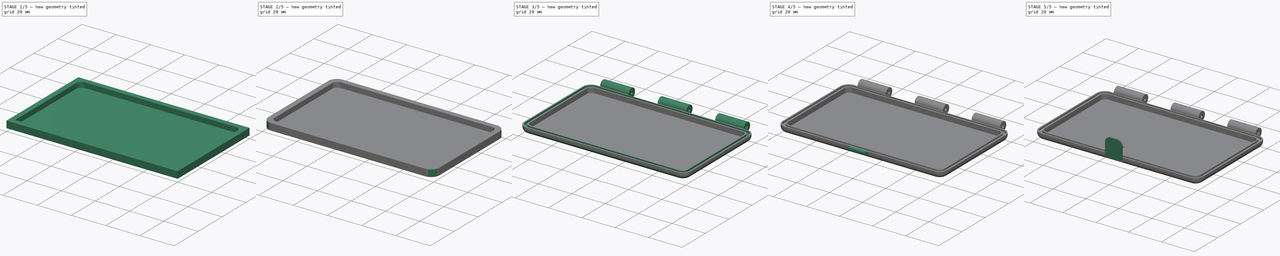
[diagram: build sequence overview — one tinted view per stage of 5, left to right]
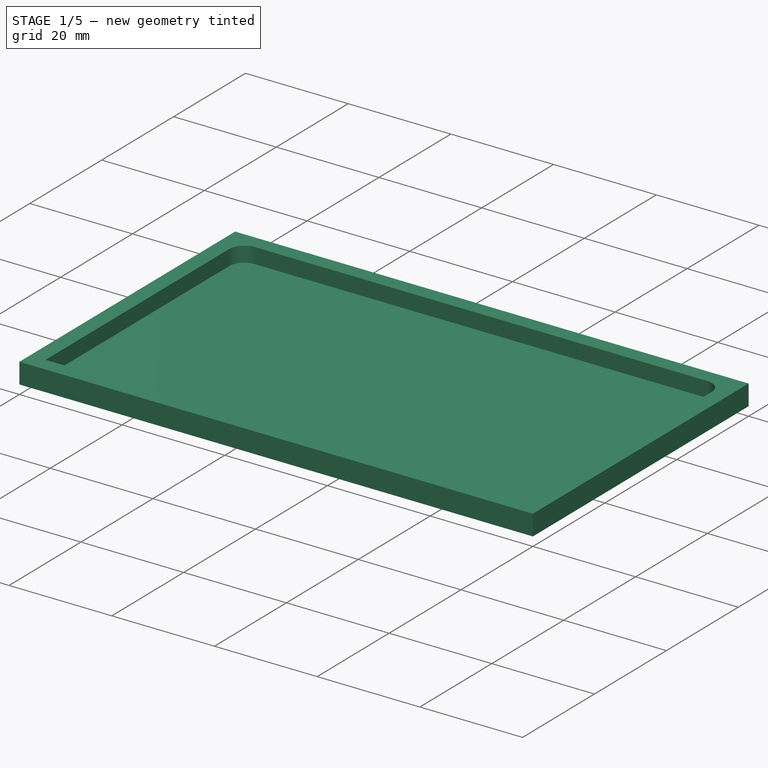
[diagram: stage 1 of 5 — iso view after this stage's code; geometry added in this stage tinted green]
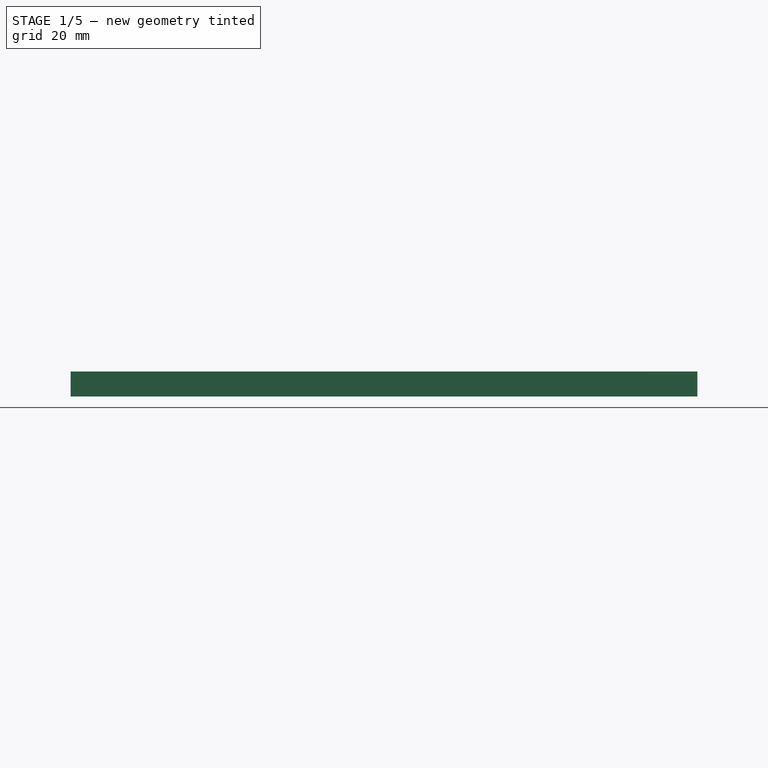
[diagram: stage 1 of 5 — front view after this stage's code; geometry added in this stage tinted green]
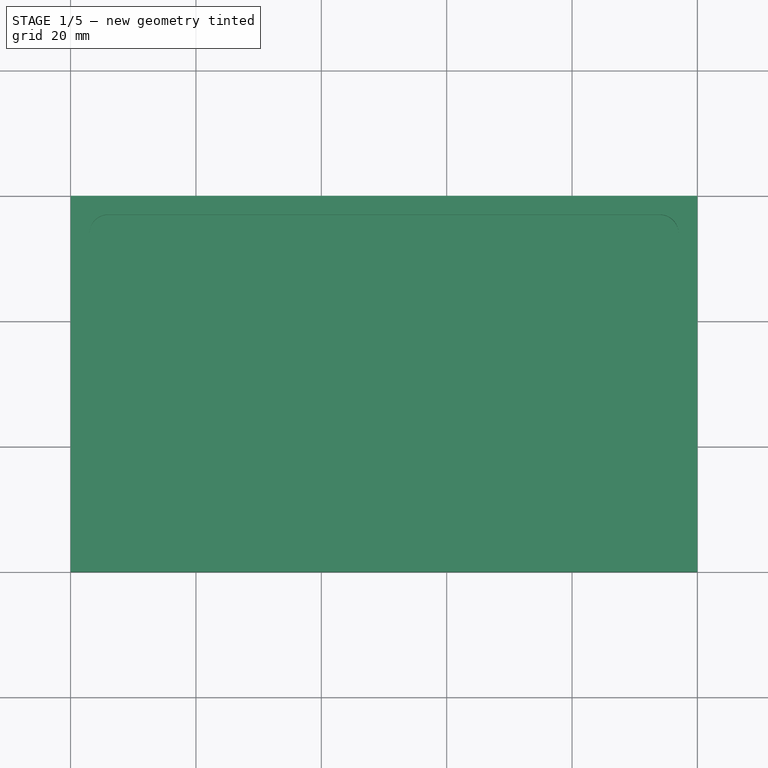
[diagram: stage 1 of 5 — top view after this stage's code; geometry added in this stage tinted green]
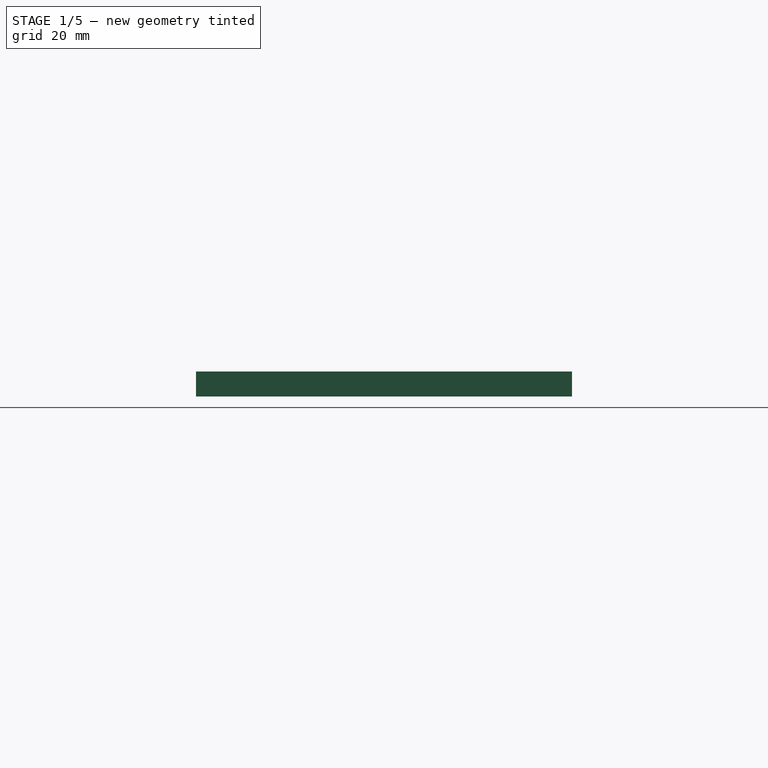
[diagram: stage 1 of 5 — right view after this stage's code; geometry added in this stage tinted green]
FCSTD DOCUMENT  (FreeCAD 0.19R24291 (Git))
Label: funnybox-closing-v2
License: All rights reserved
LicenseURL: http://en.wikipedia.org/wiki/All_rights_reserved
objects: PartDesign::Fillet×12, Sketcher::SketchObject×8, PartDesign::Pad×4, PartDesign::Pocket×3, PartDesign::LinearPattern×3, PartDesign::AdditiveCylinder×1, PartDesign::SubtractiveCylinder×1, PartDesign::AdditiveBox×1, PartDesign::Chamfer×1, PartDesign::Body×1
note: 58 computed .brp shape members not serialized (recipe doc carries the construction recipe); baked Part::Feature solids carry a one-line shape summary decoded from their .brp

FEATURE [Sketcher::SketchObject] Sketch
  FullyConstrained = true
  MapMode = 5
  Support = -> [XY_Plane]
  sketch-geometry (4):
    g0: LineSegment StartX=0 StartY=0 StartZ=0 EndX=100 EndY=0 EndZ=0
    g1: LineSegment StartX=100 StartY=0 StartZ=0 EndX=100 EndY=60 EndZ=0
    g2: LineSegment StartX=100 StartY=60 StartZ=0 EndX=0 EndY=60 EndZ=0
    g3: LineSegment StartX=0 StartY=60 StartZ=0 EndX=0 EndY=0 EndZ=0
  constraints (12):
    c: Coincident(g0,g1)
    c: Coincident(g1,g2)
    c: Coincident(g2,g3)
    c: Coincident(g3,g0)
    c: Horizontal(g0)
    c: Horizontal(g2)
    c: Vertical(g1)
    c: Vertical(g3)
    c: DistanceX(g0) = 0
    c: DistanceY(g0) = 0
    c: DistanceX(g2,g2) = 100
    c: DistanceY(g3,g3) = 60
FEATURE [PartDesign::Pad] Pad  label="Main"
  Direction = (1,1,1)
  Length = 4
  Length2 = 100
  Profile = -> Sketch
  Type = 0
FEATURE [Sketcher::SketchObject] Sketch001
  FullyConstrained = true
  MapMode = 5
  Placement = pos=(0,0,4) rot=(0,0,1;0rad)
  Support = -> [Pad]
  sketch-geometry (4):
    g0: LineSegment StartX=3 StartY=3 StartZ=0 EndX=97 EndY=3 EndZ=0
    g1: LineSegment StartX=97 StartY=3 StartZ=0 EndX=97 EndY=57 EndZ=0
    g2: LineSegment StartX=97 StartY=57 StartZ=0 EndX=3 EndY=57 EndZ=0
    g3: LineSegment StartX=3 StartY=57 StartZ=0 EndX=3 EndY=3 EndZ=0
  constraints (12):
    c: Coincident(g0,g1)
    c: Coincident(g1,g2)
    c: Coincident(g2,g3)
    c: Coincident(g3,g0)
    c: Horizontal(g0)
    c: Horizontal(g2)
    c: Vertical(g1)
    c: Vertical(g3)
    c: DistanceX(g0) = 3
    c: DistanceY(g0) = 3
    c: DistanceX(g0,g0) = 94
    c: DistanceY(g3,g3) = 54
FEATURE [PartDesign::Pocket] Pocket  label="Main hole"
  BaseFeature = -> Pad
  Length = 3
  Length2 = 100
  Profile = -> Sketch001
  Type = 0
FEATURE [PartDesign::Fillet] Fillet
  Base = -> Pocket [Edge22]
  BaseFeature = -> Pocket
  Radius = 3
  SupportTransform = false
FEATURE [PartDesign::Fillet] Fillet001
  Base = -> Fillet [Edge11]
  BaseFeature = -> Fillet
  Radius = 3
  SupportTransform = false
FEATURE [PartDesign::Fillet] Fillet002
  Base = -> Fillet001 [Edge18]
  BaseFeature = -> Fillet001
  Radius = 3
  SupportTransform = false
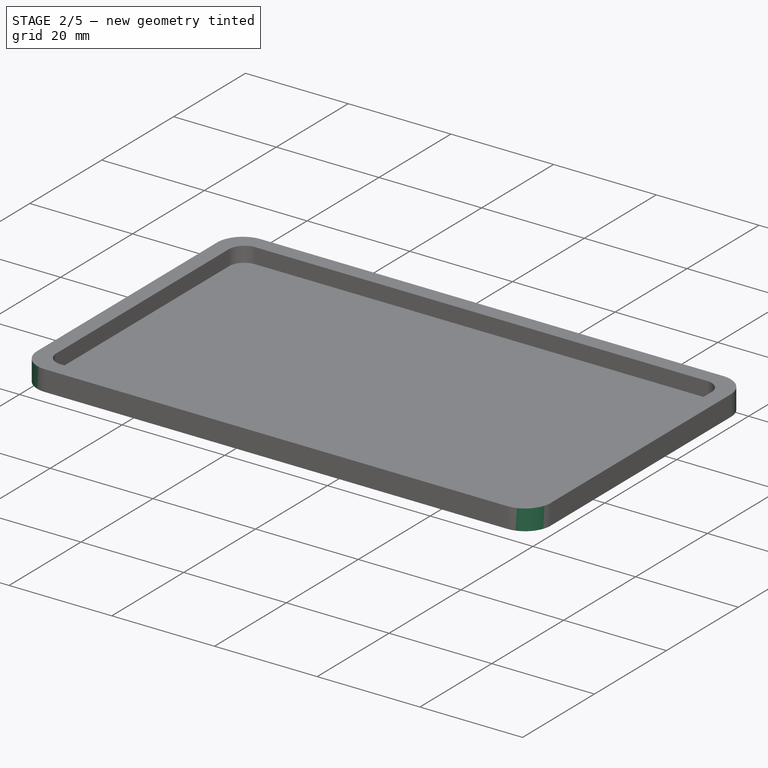
[diagram: stage 2 of 5 — iso view after this stage's code; geometry added in this stage tinted green]
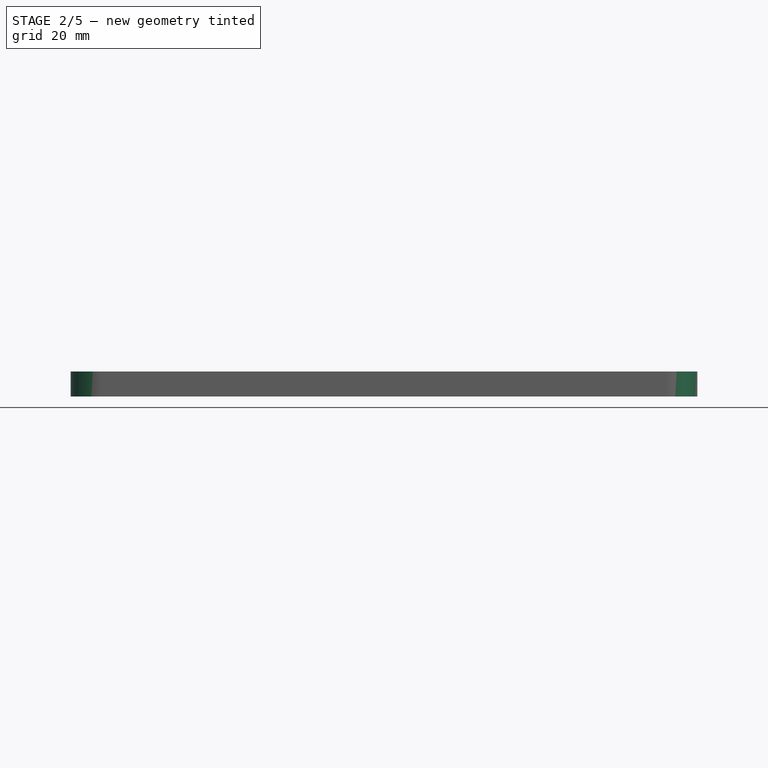
[diagram: stage 2 of 5 — front view after this stage's code; geometry added in this stage tinted green]
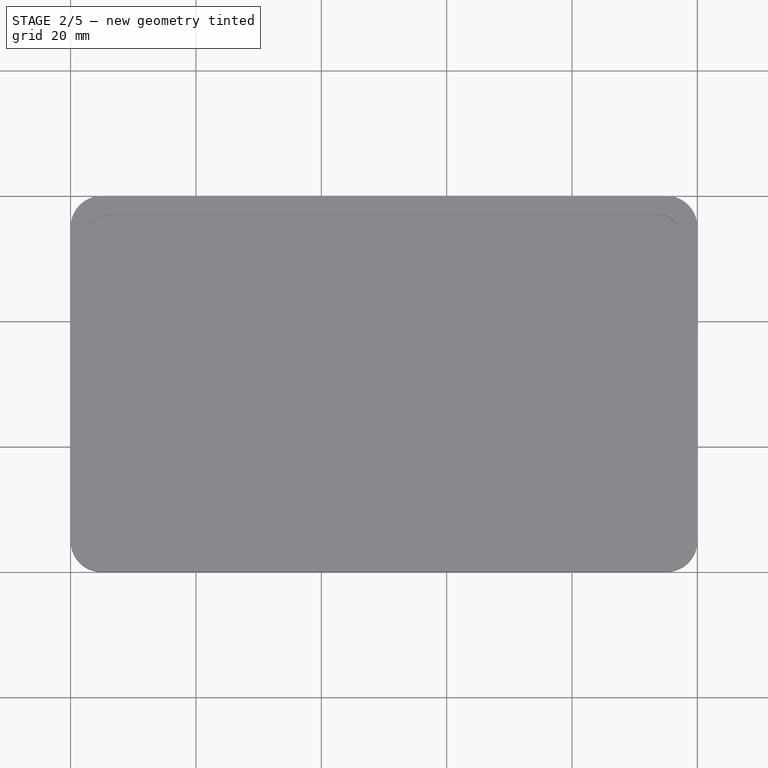
[diagram: stage 2 of 5 — top view after this stage's code; geometry added in this stage tinted green]
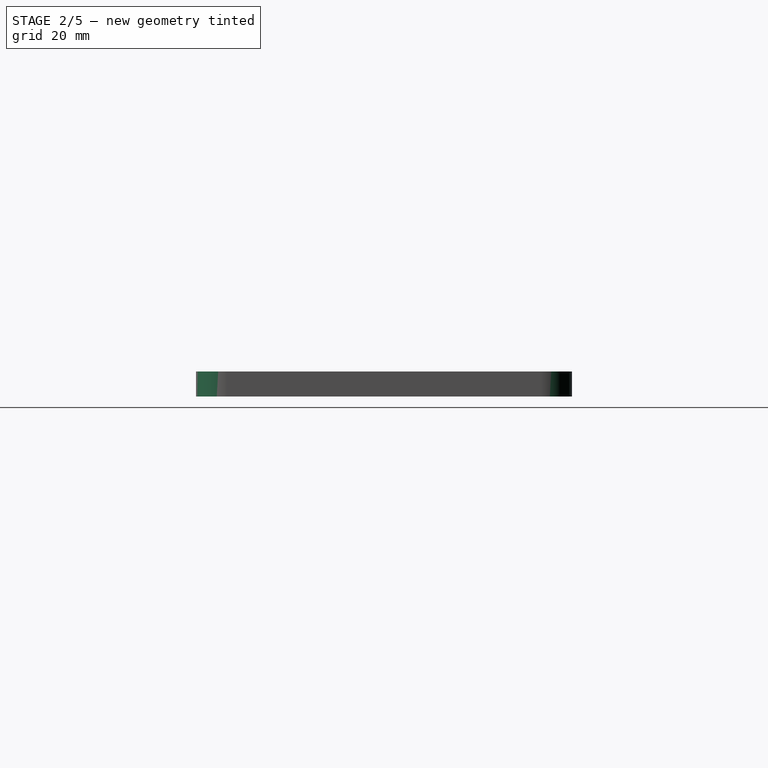
[diagram: stage 2 of 5 — right view after this stage's code; geometry added in this stage tinted green]
FEATURE [PartDesign::Fillet] Fillet003
  Base = -> Fillet002 [Edge19]
  BaseFeature = -> Fillet002
  Radius = 3
  SupportTransform = false
FEATURE [PartDesign::Fillet] Fillet004
  Base = -> Fillet003 [Edge32]
  BaseFeature = -> Fillet003
  Radius = 5
  SupportTransform = false
FEATURE [PartDesign::Fillet] Fillet005
  Base = -> Fillet004 [Edge16]
  BaseFeature = -> Fillet004
  Radius = 5
  SupportTransform = false
FEATURE [PartDesign::Fillet] Fillet006
  Base = -> Fillet005 [Edge23]
  BaseFeature = -> Fillet005
  Radius = 5
  SupportTransform = false
FEATURE [PartDesign::Fillet] Fillet007
  Base = -> Fillet006 [Edge24]
  BaseFeature = -> Fillet006
  Radius = 5
  SupportTransform = false
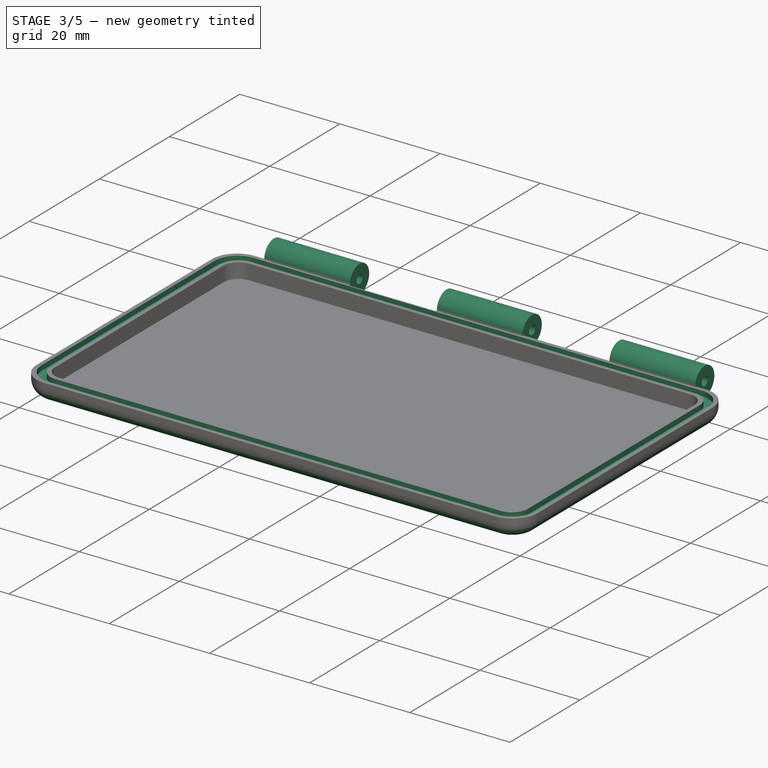
[diagram: stage 3 of 5 — iso view after this stage's code; geometry added in this stage tinted green]
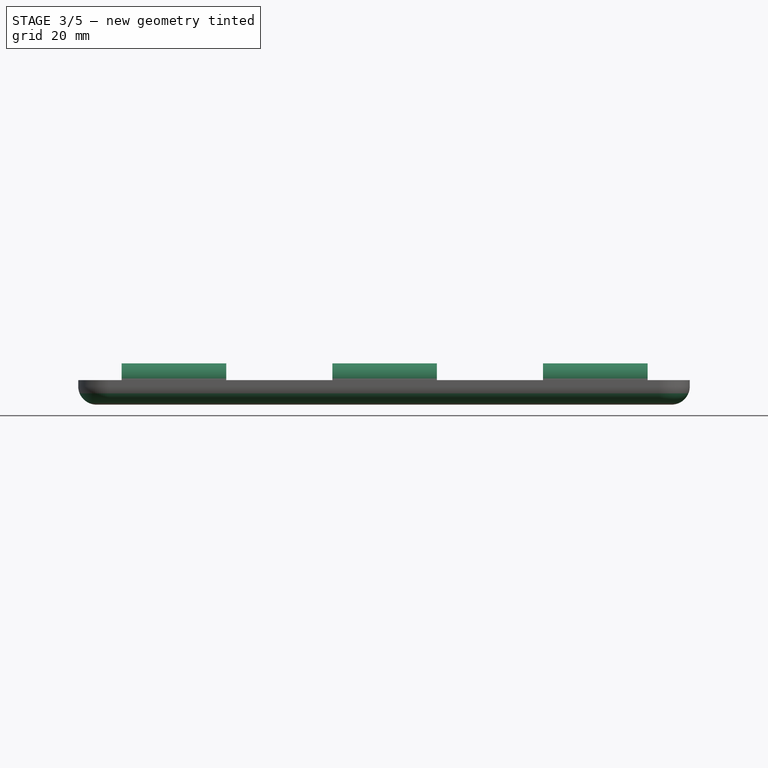
[diagram: stage 3 of 5 — front view after this stage's code; geometry added in this stage tinted green]
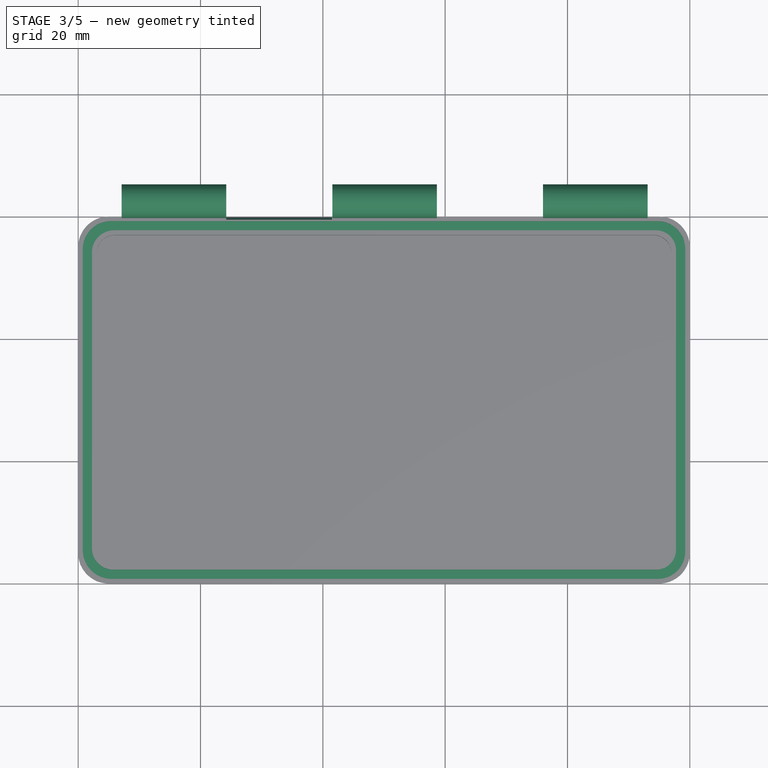
[diagram: stage 3 of 5 — top view after this stage's code; geometry added in this stage tinted green]
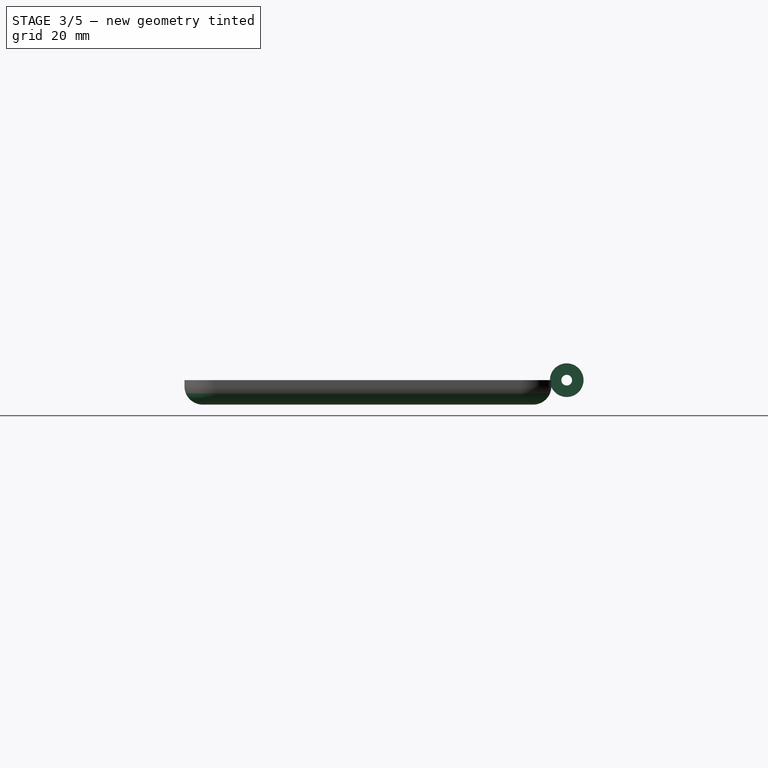
[diagram: stage 3 of 5 — right view after this stage's code; geometry added in this stage tinted green]
FEATURE [PartDesign::Fillet] Fillet008
  Base = -> Fillet007 [Edge24]
  BaseFeature = -> Fillet007
  Radius = 3
  SupportTransform = false
FEATURE [Sketcher::SketchObject] Sketch008
  FullyConstrained = false
  MapMode = 5
  Placement = pos=(0,0,4) rot=(0,0,1;0rad)
  Support = -> [Pad]
  sketch-geometry (24):
    g0: LineSegment StartX=5.42716 StartY=0.75 StartZ=0 EndX=94.8277 EndY=0.75 EndZ=0
    g1: LineSegment StartX=99.25 StartY=5.17234 StartZ=0 EndX=99.25 EndY=54.7282 EndZ=0
    g2: LineSegment StartX=94.7282 StartY=59.25 StartZ=0 EndX=5.31432 EndY=59.25 EndZ=0
    g3: LineSegment StartX=0.75 StartY=54.6857 StartZ=0 EndX=0.75 EndY=5.42716 EndZ=0
    g4: LineSegment StartX=5.7754 StartY=2.25 StartZ=0 EndX=94.5011 EndY=2.25 EndZ=0
    g5: LineSegment StartX=97.75 StartY=5.49885 StartZ=0 EndX=97.75 EndY=54.4767 EndZ=0
    g6: LineSegment StartX=94.4767 StartY=57.75 StartZ=0 EndX=5.87538 EndY=57.75 EndZ=0
    g7: LineSegment StartX=2.25 StartY=54.1246 StartZ=0 EndX=2.25 EndY=5.7754 EndZ=0
    g8: ArcOfCircle CenterX=5.87538 CenterY=54.1246 CenterZ=0 NormalX=0 NormalY=0 NormalZ=1 AngleXU=0 Radius=3.62538 StartAngle=1.5708 EndAngle=3.14159
    g9: GeomPoint X=2.25 Y=57.75 Z=0
    g10: ArcOfCircle CenterX=5.31432 CenterY=54.6857 CenterZ=0 NormalX=0 NormalY=0 NormalZ=1 AngleXU=0 Radius=4.56432 StartAngle=1.5708 EndAngle=3.14159
    g11: GeomPoint X=0.75 Y=59.25 Z=0
    g12: ArcOfCircle CenterX=94.4767 CenterY=54.4767 CenterZ=0 NormalX=0 NormalY=0 NormalZ=1 AngleXU=0 Radius=3.27332 StartAngle=0 EndAngle=1.5708
    g13: GeomPoint X=97.75 Y=57.75 Z=0
    g14: ArcOfCircle CenterX=94.7282 CenterY=54.7282 CenterZ=0 NormalX=0 NormalY=0 NormalZ=1 AngleXU=0 Radius=4.52181 StartAngle=0 EndAngle=1.5708
    g15: GeomPoint X=99.25 Y=59.25 Z=0
    g16: ArcOfCircle CenterX=5.7754 CenterY=5.7754 CenterZ=0 NormalX=0 NormalY=0 NormalZ=1 AngleXU=0 Radius=3.5254 StartAngle=3.14159 EndAngle=4.71239
    g17: GeomPoint X=2.25 Y=2.25 Z=0
    g18: ArcOfCircle CenterX=5.42716 CenterY=5.42716 CenterZ=0 NormalX=0 NormalY=0 NormalZ=1 AngleXU=0 Radius=4.67716 StartAngle=3.14159 EndAngle=4.71239
    g19: GeomPoint X=0.75 Y=0.75 Z=0
    g20: ArcOfCircle CenterX=94.5011 CenterY=5.49885 CenterZ=0 NormalX=0 NormalY=0 NormalZ=1 AngleXU=0 Radius=3.24885 StartAngle=4.71239 EndAngle=6.28319
    g21: GeomPoint X=97.75 Y=2.25 Z=0
    g22: ArcOfCircle CenterX=94.8277 CenterY=5.17234 CenterZ=0 NormalX=0 NormalY=0 NormalZ=1 AngleXU=0 Radius=4.42234 StartAngle=4.71239 EndAngle=6.28319
    g23: GeomPoint X=99.25 Y=0.75 Z=0
  constraints (48):
    c: Horizontal(g0)
    c: Horizontal(g2)
    c: Vertical(g1)
    c: Vertical(g3)
    c: DistanceX(g19) = 0.75
    c: DistanceY(g19) = 0.75
    c: DistanceX(g19,g23) = 98.5
    c: DistanceY(g19,g11) = 58.5
    c: Horizontal(g4)
    c: Horizontal(g6)
    c: Vertical(g5)
    c: Vertical(g7)
    c: DistanceX(g17) = 2.25
    c: DistanceY(g17) = 2.25
    c: DistanceX(g17,g21) = 95.5
    c: DistanceY(g17,g9) = 55.5
    c: PointOnObject(g9,g6)
    c: PointOnObject(g9,g7)
    c: Tangent(g6,g8) = -1.5708
    c: Tangent(g7,g8) = -1.5708
    c: PointOnObject(g11,g2)
    c: PointOnObject(g11,g3)
    c: Tangent(g2,g10) = -1.5708
    c: Tangent(g3,g10) = -1.5708
    c: PointOnObject(g13,g5)
    c: PointOnObject(g13,g6)
    c: Tangent(g5,g12) = -1.5708
    c: Tangent(g6,g12) = -1.5708
    c: PointOnObject(g15,g1)
    c: PointOnObject(g15,g2)
    c: Tangent(g1,g14) = -1.5708
    c: Tangent(g2,g14) = -1.5708
    c: PointOnObject(g17,g4)
    c: PointOnObject(g17,g7)
    c: Tangent(g4,g16) = -1.5708
    c: Tangent(g7,g16) = -1.5708
    c: PointOnObject(g19,g0)
    c: PointOnObject(g19,g3)
    c: Tangent(g0,g18) = -1.5708
    c: Tangent(g3,g18) = -1.5708
    c: PointOnObject(g21,g4)
    c: PointOnObject(g21,g5)
    c: Tangent(g4,g20) = -1.5708
    c: Tangent(g5,g20) = -1.5708
    c: PointOnObject(g23,g0)
    c: PointOnObject(g23,g1)
    c: Tangent(g0,g22) = -1.5708
    c: Tangent(g1,g22) = -1.5708
FEATURE [PartDesign::Pocket] Pocket001
  BaseFeature = -> Fillet008
  Length = 1
  Length2 = 100
  Profile = -> Sketch008
  Type = 0
FEATURE [Sketcher::SketchObject] Sketch009  label="axis joint"
  AttachmentOffset = pos=(0,0,4) rot=(0,0,1;0rad)
  FullyConstrained = true
  MapMode = 5
  Placement = pos=(0,0,4) rot=(0,0,1;0rad)
  Support = -> [XY_Plane]
  sketch-geometry (1):
    g0: LineSegment StartX=7 StartY=62.5 StartZ=0 EndX=93 EndY=62.5 EndZ=0
  constraints (4):
    c: Horizontal(g0)
    c: DistanceX(g0) = 7
    c: DistanceY(g0) = 62.5
    c: DistanceX(g0,g0) = 86
FEATURE [PartDesign::AdditiveCylinder] Cylinder
  Angle = 360
  AttacherType = Attacher::AttachEngine3D
  AttachmentOffset = pos=(0,0,-17.2) rot=(0,0,1;0rad)
  BaseFeature = -> Pocket001
  Height = 17.1
  MapMode = 7
  Placement = pos=(24.2,62.5,4) rot=(0.57735,-0.57735,-0.57735;2.0944rad)
  Radius = 2.75
  Support = -> [Sketch009]
FEATURE [PartDesign::LinearPattern] LinearPattern
  BaseFeature = -> Cylinder
  Direction = -> Sketch009 [Edge1]
  Length = 68.9
  Occurrences = 3
  Originals = -> [Cylinder]
  Placement = pos=(24.2,62.5,4) rot=(0.57735,-0.57735,-0.57735;2.0944rad)
FEATURE [Sketcher::SketchObject] Sketch010
  FullyConstrained = true
  MapMode = 5
  Placement = pos=(7.1,62.5,4) rot=(0.57735,-0.57735,-0.57735;2.0944rad)
  Support = -> [LinearPattern]
  sketch-geometry (1):
    g0: Circle CenterX=0 CenterY=0 CenterZ=0 NormalX=0 NormalY=0 NormalZ=1 AngleXU=0 Radius=0.875
  constraints (2):
    c: Coincident(g0,g-1)
    c: Diameter(g0) = 1.75
FEATURE [PartDesign::Pocket] Pocket002
  BaseFeature = -> LinearPattern
  Length = 86
  Length2 = 100
  Placement = pos=(24.2,62.5,4) rot=(0.57735,-0.57735,-0.57735;2.0944rad)
  Profile = -> Sketch010
  Type = 0
FEATURE [PartDesign::SubtractiveCylinder] Cylinder001
  Angle = 360
  AttacherType = Attacher::AttachEngine3D
  AttachmentOffset = pos=(0,0,-34.5) rot=(0,0,1;0rad)
  BaseFeature = -> Pocket002
  Height = 17.3
  MapMode = 7
  Placement = pos=(41.5,62.5,4) rot=(0.57735,-0.57735,-0.57735;2.0944rad)
  Radius = 3
  Support = -> [Sketch009]
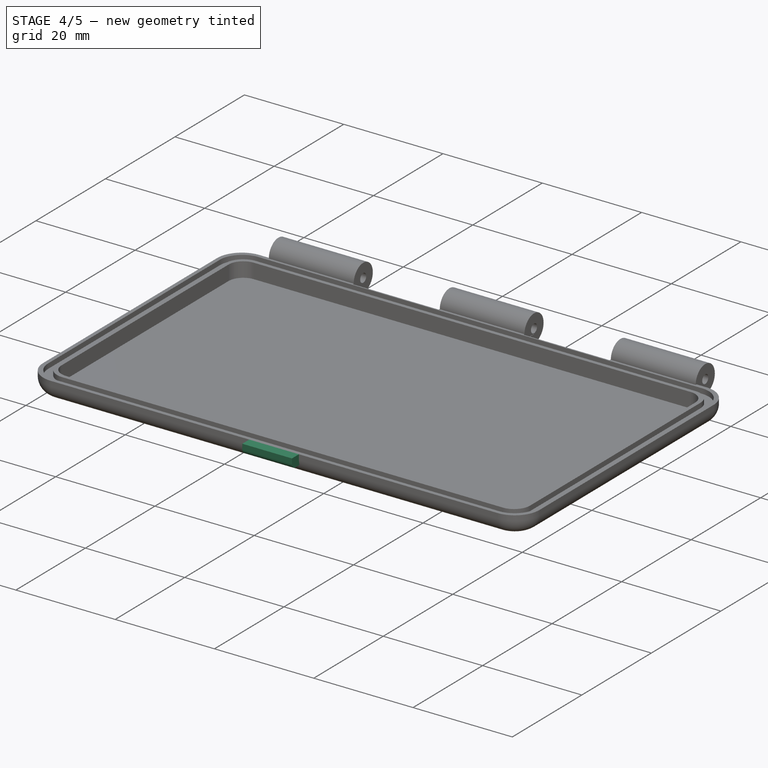
[diagram: stage 4 of 5 — iso view after this stage's code; geometry added in this stage tinted green]
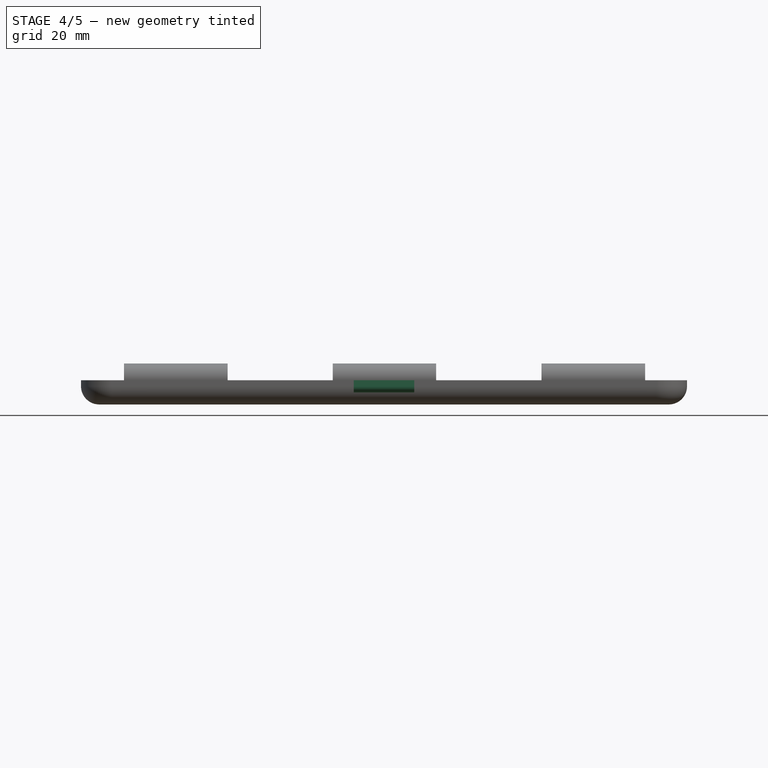
[diagram: stage 4 of 5 — front view after this stage's code; geometry added in this stage tinted green]
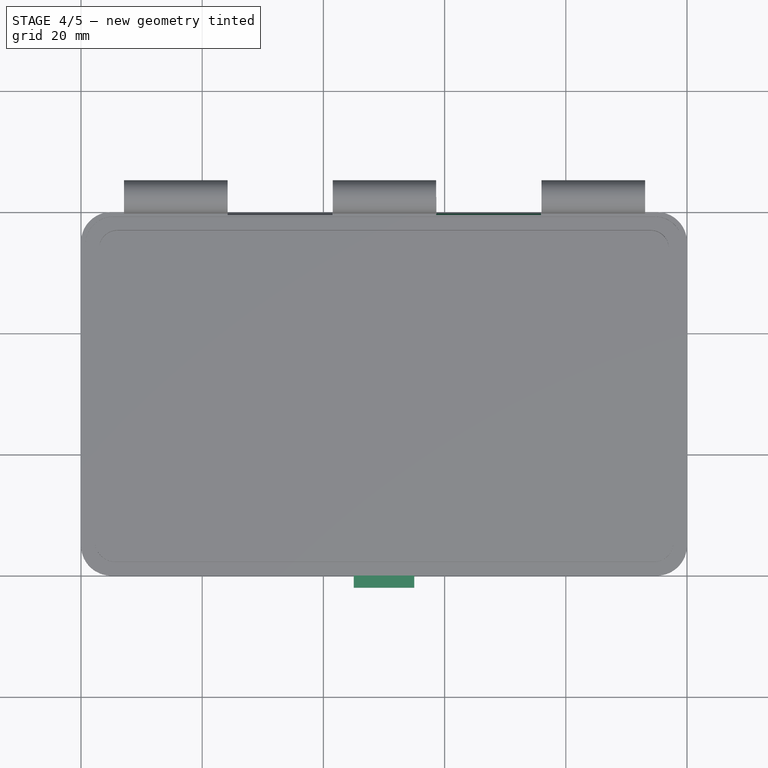
[diagram: stage 4 of 5 — top view after this stage's code; geometry added in this stage tinted green]
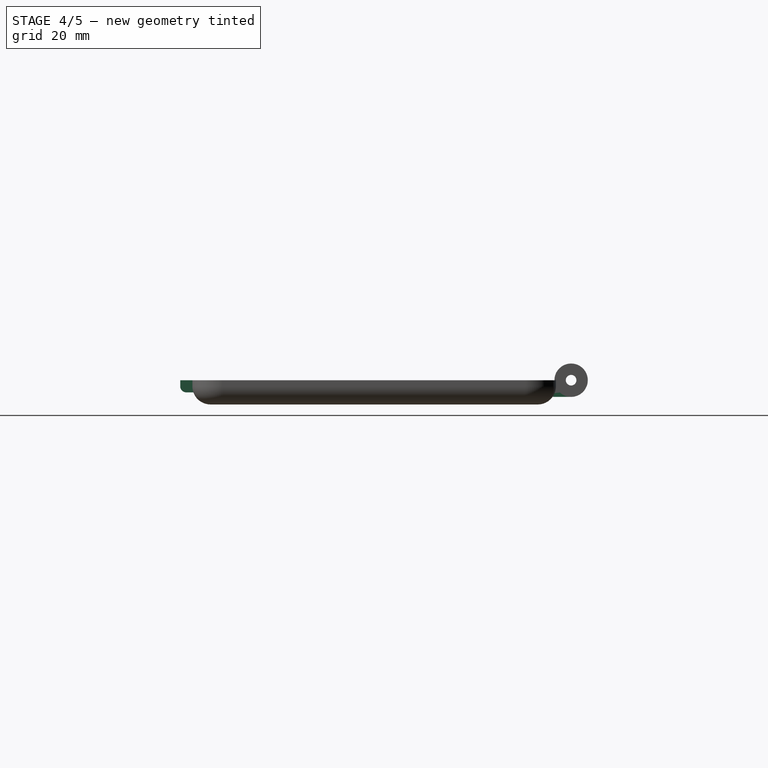
[diagram: stage 4 of 5 — right view after this stage's code; geometry added in this stage tinted green]
FEATURE [PartDesign::LinearPattern] LinearPattern001
  BaseFeature = -> Cylinder001
  Direction = -> Sketch009 [Edge1]
  Length = 34.4
  Occurrences = 2
  Originals = -> [Cylinder001]
  Placement = pos=(41.5,62.5,4) rot=(0.57735,-0.57735,-0.57735;2.0944rad)
FEATURE [PartDesign::AdditiveBox] Box
  AttacherType = Attacher::AttachEngine3D
  AttachmentOffset = pos=(0,-2.75,-17.2) rot=(0,0,1;0rad)
  BaseFeature = -> LinearPattern001
  Height = 17
  Length = 3
  MapMode = 7
  Placement = pos=(24.2,62.5,1.25) rot=(0.57735,-0.57735,-0.57735;2.0944rad)
  Support = -> [Sketch009]
  Width = 1.75
FEATURE [PartDesign::LinearPattern] LinearPattern002
  BaseFeature = -> Box
  Direction = -> X_Axis
  Length = 68.9
  Occurrences = 3
  Originals = -> [Box]
  Placement = pos=(24.2,62.5,1.25) rot=(0.57735,-0.57735,-0.57735;2.0944rad)
FEATURE [Sketcher::SketchObject] Sketch011
  AttachmentOffset = pos=(0,0,-0.5) rot=(0,0,1;0rad)
  FullyConstrained = true
  MapMode = 5
  Placement = pos=(0,0.5,-1e-16) rot=(1,0,0;1.5708rad)
  Support = -> [Pad]
  sketch-geometry (4):
    g0: LineSegment StartX=45 StartY=4 StartZ=0 EndX=55 EndY=4 EndZ=0
    g1: LineSegment StartX=55 StartY=4 StartZ=0 EndX=55 EndY=2 EndZ=0
    g2: LineSegment StartX=55 StartY=2 StartZ=0 EndX=45 EndY=2 EndZ=0
    g3: LineSegment StartX=45 StartY=2 StartZ=0 EndX=45 EndY=4 EndZ=0
  constraints (12):
    c: Coincident(g0,g1)
    c: Coincident(g1,g2)
    c: Coincident(g2,g3)
    c: Coincident(g3,g0)
    c: Horizontal(g0)
    c: Horizontal(g2)
    c: Vertical(g1)
    c: Vertical(g3)
    c: DistanceX(g2) = 45
    c: DistanceY(g2) = 2
    c: DistanceY(g3,g3) = 2
    c: DistanceX(g2,g2) = 10
FEATURE [PartDesign::Pad] Pad001
  BaseFeature = -> LinearPattern002
  Direction = (1,1,1)
  Length = 2.5
  Length2 = 100
  Placement = pos=(24.2,62.5,1.25) rot=(0.57735,-0.57735,-0.57735;2.0944rad)
  Profile = -> Sketch011
  Type = 0
FEATURE [PartDesign::Fillet] Fillet009
  Base = -> Pad001 [Edge196]
  BaseFeature = -> Pad001
  Placement = pos=(24.2,62.5,1.25) rot=(0.57735,-0.57735,-0.57735;2.0944rad)
  Radius = 1
  SupportTransform = false
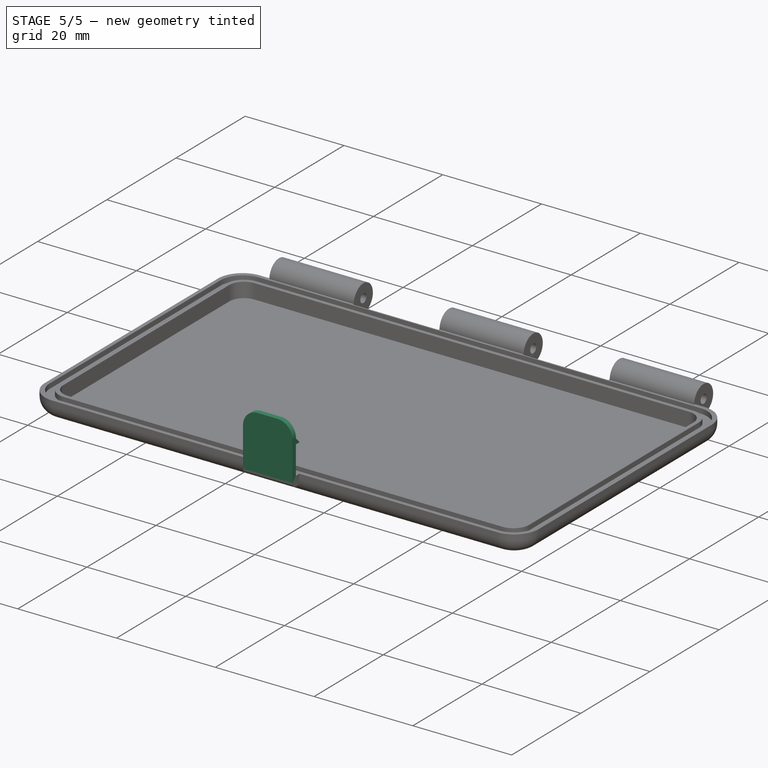
[diagram: stage 5 of 5 — iso view after this stage's code; geometry added in this stage tinted green]
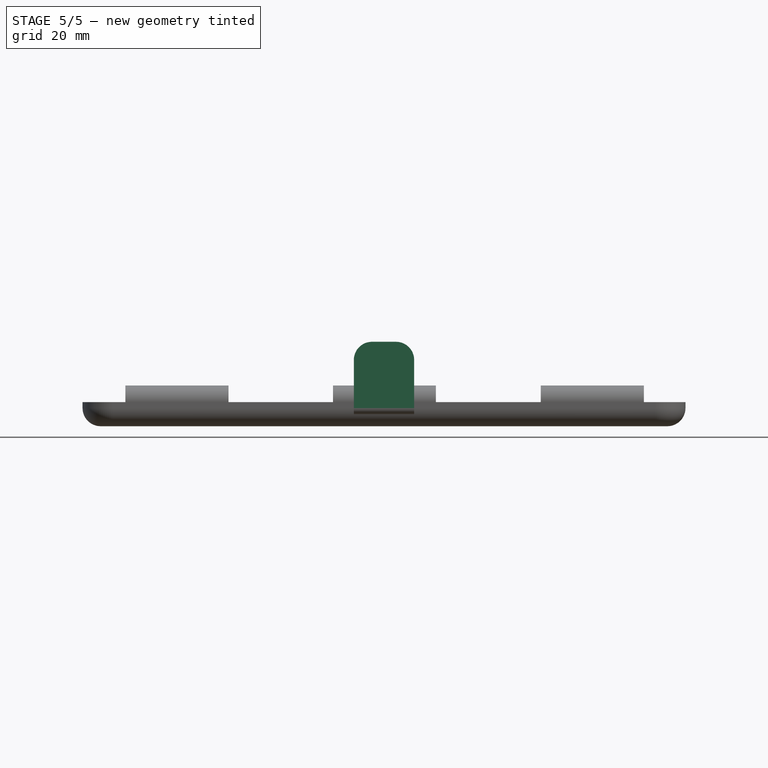
[diagram: stage 5 of 5 — front view after this stage's code; geometry added in this stage tinted green]
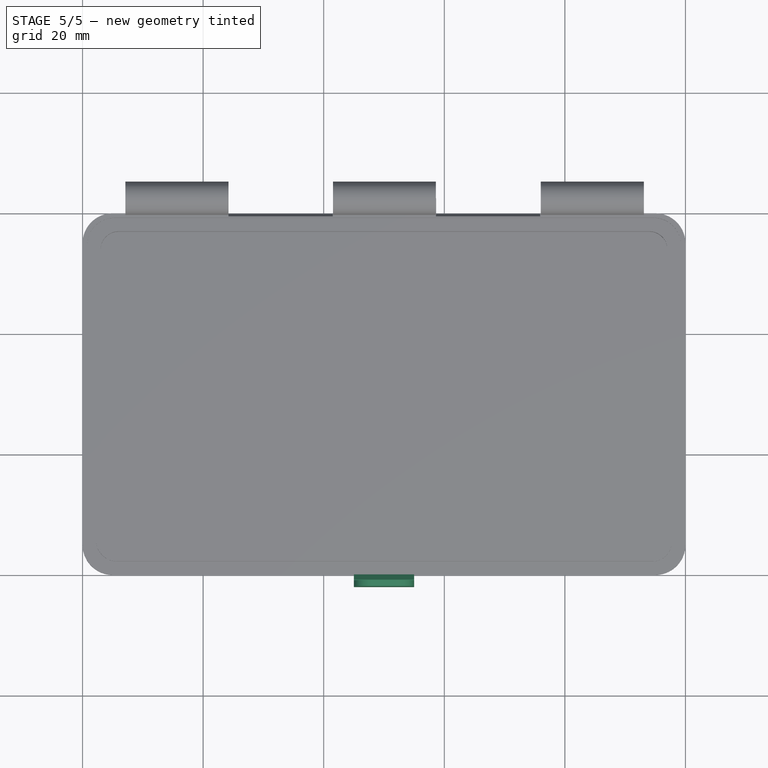
[diagram: stage 5 of 5 — top view after this stage's code; geometry added in this stage tinted green]
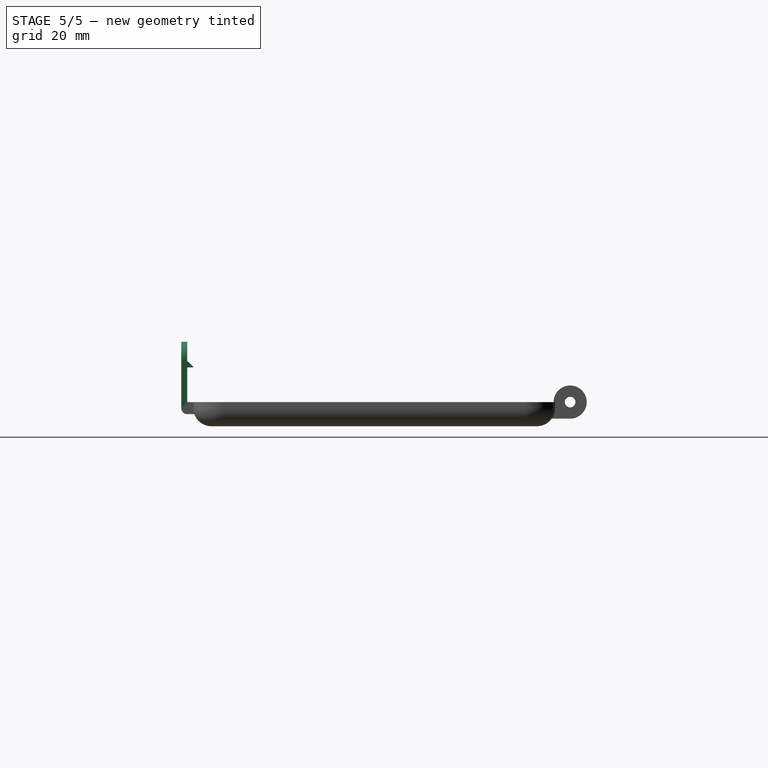
[diagram: stage 5 of 5 — right view after this stage's code; geometry added in this stage tinted green]
FEATURE [Sketcher::SketchObject] Sketch012
  FullyConstrained = true
  MapMode = 5
  Placement = pos=(24.2,62.5,4) rot=(0,0,1;1.5708rad)
  Support = -> [Fillet009]
  sketch-geometry (4):
    g0: LineSegment StartX=-64.5 StartY=-20.8 StartZ=0 EndX=-63.5 EndY=-20.8 EndZ=0
    g1: LineSegment StartX=-63.5 StartY=-20.8 StartZ=0 EndX=-63.5 EndY=-30.8 EndZ=0
    g2: LineSegment StartX=-63.5 StartY=-30.8 StartZ=0 EndX=-64.5 EndY=-30.8 EndZ=0
    g3: LineSegment StartX=-64.5 StartY=-30.8 StartZ=0 EndX=-64.5 EndY=-20.8 EndZ=0
  constraints (12):
    c: Coincident(g0,g1)
    c: Coincident(g1,g2)
    c: Coincident(g2,g3)
    c: Coincident(g3,g0)
    c: Horizontal(g0)
    c: Horizontal(g2)
    c: Vertical(g1)
    c: Vertical(g3)
    c: DistanceX(g2) = -64.5
    c: DistanceY(g2) = -30.8
    c: DistanceY(g3,g3) = 10
    c: DistanceX(g0,g0) = 1
FEATURE [PartDesign::Pad] Pad002
  BaseFeature = -> Fillet009
  Direction = (1,1,1)
  Length = 10
  Length2 = 100
  Placement = pos=(24.2,62.5,1.25) rot=(0.57735,-0.57735,-0.57735;2.0944rad)
  Profile = -> Sketch012
  Type = 0
FEATURE [PartDesign::Fillet] Fillet010
  Base = -> Pad002 [Edge28]
  BaseFeature = -> Pad002
  Placement = pos=(24.2,62.5,1.25) rot=(0.57735,-0.57735,-0.57735;2.0944rad)
  Radius = 3
  SupportTransform = false
FEATURE [PartDesign::Fillet] Fillet011
  Base = -> Fillet010 [Edge22]
  BaseFeature = -> Fillet010
  Placement = pos=(24.2,62.5,1.25) rot=(0.57735,-0.57735,-0.57735;2.0944rad)
  Radius = 3
  SupportTransform = false
FEATURE [Sketcher::SketchObject] Sketch013
  FullyConstrained = true
  MapMode = 5
  Placement = pos=(24.2,-1,1.25) rot=(-0.57735,0.57735,0.57735;2.0944rad)
  Support = -> [Fillet011]
  sketch-geometry (4):
    g0: LineSegment StartX=-9.5 StartY=-20.8 StartZ=0 EndX=-8.5 EndY=-20.8 EndZ=0
    g1: LineSegment StartX=-8.5 StartY=-20.8 StartZ=0 EndX=-8.5 EndY=-30.8 EndZ=0
    g2: LineSegment StartX=-8.5 StartY=-30.8 StartZ=0 EndX=-9.5 EndY=-30.8 EndZ=0
    g3: LineSegment StartX=-9.5 StartY=-30.8 StartZ=0 EndX=-9.5 EndY=-20.8 EndZ=0
  constraints (12):
    c: Coincident(g0,g1)
    c: Coincident(g1,g2)
    c: Coincident(g2,g3)
    c: Coincident(g3,g0)
    c: Horizontal(g0)
    c: Horizontal(g2)
    c: Vertical(g1)
    c: Vertical(g3)
    c: DistanceX(g1) = -8.5
    c: DistanceY(g1) = -30.8
    c: DistanceX(g2,g2) = 1
    c: DistanceY(g1,g1) = 10
FEATURE [PartDesign::Pad] Pad003
  BaseFeature = -> Fillet011
  Direction = (1,1,1)
  Length = 1
  Length2 = 0.5
  Placement = pos=(24.2,62.5,1.25) rot=(0.57735,-0.57735,-0.57735;2.0944rad)
  Profile = -> Sketch013
  Refine = true
  Type = 4
FEATURE [PartDesign::Chamfer] Chamfer
  Angle = 45
  Base = -> Pad003 [Edge18]
  BaseFeature = -> Pad003
  ChamferType = 0
  FlipDirection = false
  Placement = pos=(24.2,62.5,1.25) rot=(0.57735,-0.57735,-0.57735;2.0944rad)
  Size = 0.9
  Size2 = 1
  SupportTransform = false
FEATURE [PartDesign::Body] Body
  Group = -> [Sketch,Pad,Sketch001,Pocket,Fillet,Fillet001,Fillet002,Fillet003,Fillet004,Fillet005,Fillet006,Fillet007,Fillet008,Sketch008,Pocket001,Sketch009,Cylinder,LinearPattern,Sketch010,Pocket002,Cylinder001,LinearPattern001,Box,LinearPattern002,Sketch011,Pad001,Fillet009,Sketch012,Pad002,Fillet010,Fillet011,Sketch013,Pad003,Chamfer]
  Origin = -> Origin
  Tip = -> Chamfer
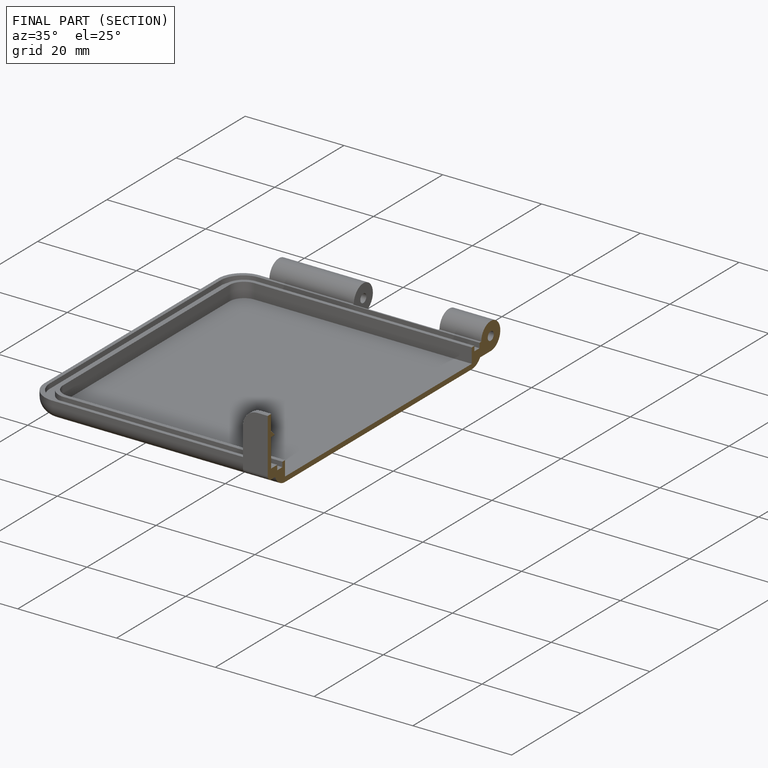
[diagram: finished part — half-section view (interior)]
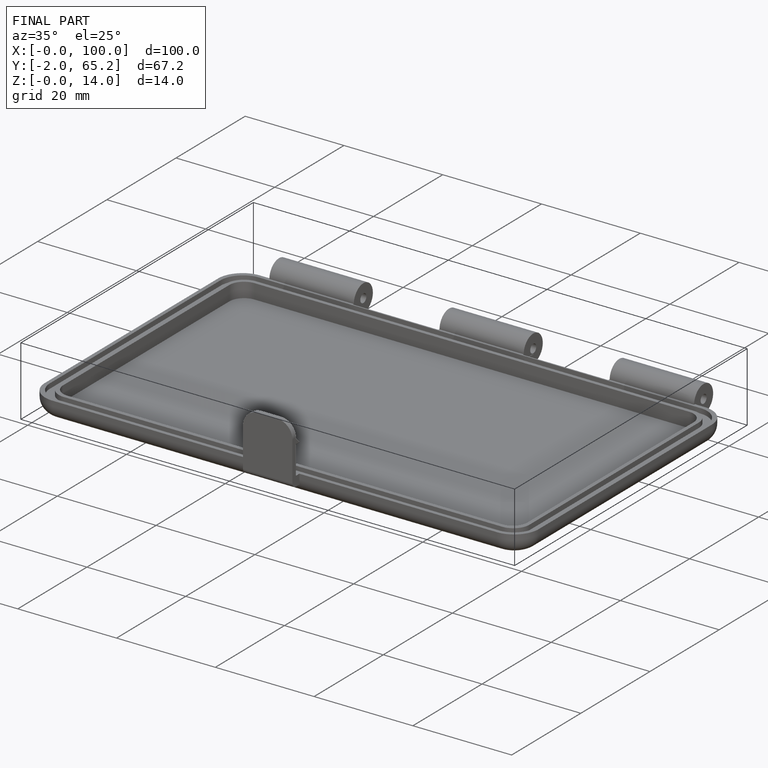
[diagram: finished part — iso view with bounding-box wireframe]
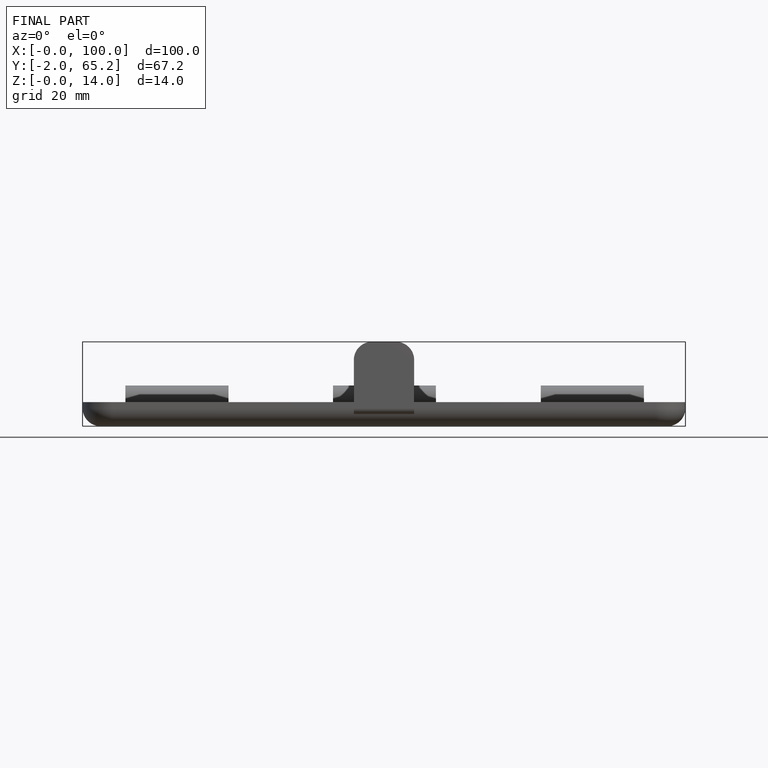
[diagram: finished part — front view with bounding-box wireframe]
